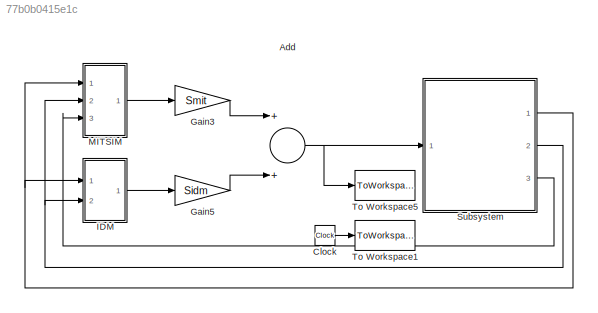
MODEL slx_77b0b0415e1c
KIND model
CONFIG AbsTol = auto
CONFIG EnableMultiTasking = on
CONFIG FixedStep = auto
CONFIG MaxStep = maxstepsize
CONFIG MinStep = auto
CONFIG RelTol = 1e-3
CONFIG SampleTimeConstraint = Unconstrained
CONFIG Solver = VariableStepAuto
CONFIG SolverName = VariableStepAuto
CONFIG StartTime = 0.0
CONFIG StopTime = tfinal
BLOCK [Sum] Add
  InputSameDT = off
  OutDataTypeStr = Inherit: Inherit via internal rule
  Ports = [2, 1]
  SaturateOnIntegerOverflow = off
BLOCK [Clock] Clock
BLOCK [Gain] Gain3
  Gain = Smit
  Multiplication = Matrix(K*u)
  OutDataTypeStr = Inherit: Inherit via internal rule
  ParamDataTypeStr = Inherit: Inherit via internal rule
  SaturateOnIntegerOverflow = off
BLOCK [Gain] Gain5
  Gain = Sidm
  Multiplication = Matrix(K*u)
  OutDataTypeStr = Inherit: Inherit via internal rule
  ParamDataTypeStr = Inherit: Inherit via internal rule
  SaturateOnIntegerOverflow = off
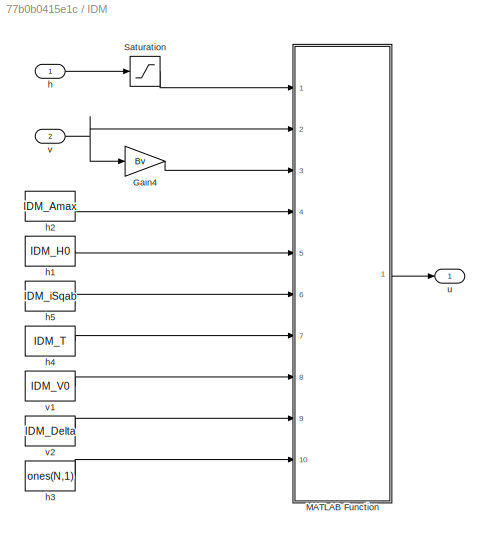
BLOCK [SubSystem] IDM
  Ports = [2, 1]
  RequestExecContextInheritance = off
BLOCK [Gain] IDM/Gain4
  Gain = Bv
  Multiplication = Matrix(K*u)
  OutDataTypeStr = Inherit: Inherit via internal rule
  ParamDataTypeStr = Inherit: Inherit via internal rule
  SaturateOnIntegerOverflow = off
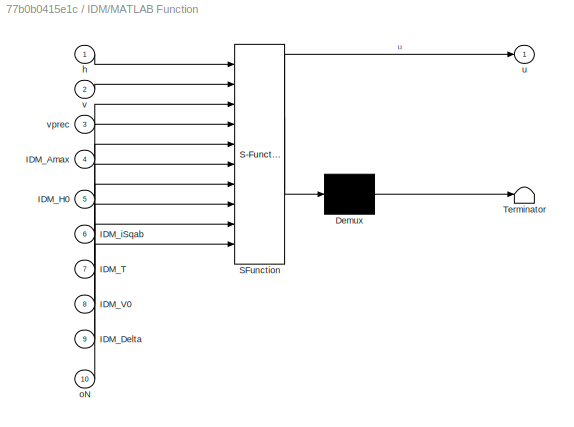
BLOCK [SubSystem] IDM/MATLAB Function
  ErrorFcn = Stateflow.Translate.translate
  PermitHierarchicalResolution = ExplicitOnly
  Ports = [10, 1]
  RequestExecContextInheritance = off
  SFBlockType = MATLAB Function
  TreatAsAtomicUnit = on
BLOCK [Demux] IDM/MATLAB Function/ Demux 
  Outputs = 1
  Ports = [1, 1]
BLOCK [S-Function] IDM/MATLAB Function/ SFunction 
  EnableBusSupport = on
  FunctionName = sf_sfun
  PortCounts = [10 2]
  Ports = [10, 2]
  SFcnIsStateOwnerBlock = off
  SFunctionDeploymentMode = off
  Tag = Stateflow S-Function A_Justo_SCHFV_I_V 2
BLOCK [Terminator] IDM/MATLAB Function/ Terminator 
BLOCK [Inport] IDM/MATLAB Function/IDM_Amax
  IconDisplay = Port number
  Port = 4
BLOCK [Inport] IDM/MATLAB Function/IDM_Delta
  IconDisplay = Port number
  Port = 9
BLOCK [Inport] IDM/MATLAB Function/IDM_H0
  IconDisplay = Port number
  Port = 5
BLOCK [Inport] IDM/MATLAB Function/IDM_T
  IconDisplay = Port number
  Port = 7
BLOCK [Inport] IDM/MATLAB Function/IDM_V0
  IconDisplay = Port number
  Port = 8
BLOCK [Inport] IDM/MATLAB Function/IDM_iSqab
  IconDisplay = Port number
  Port = 6
BLOCK [Inport] IDM/MATLAB Function/h
  IconDisplay = Port number
BLOCK [Inport] IDM/MATLAB Function/oN
  IconDisplay = Port number
  Port = 10
BLOCK [Outport] IDM/MATLAB Function/u
  IconDisplay = Port number
BLOCK [Inport] IDM/MATLAB Function/v
  IconDisplay = Port number
  Port = 2
BLOCK [Inport] IDM/MATLAB Function/vprec
  IconDisplay = Port number
  Port = 3
BLOCK [Saturate] IDM/Saturation
  InputPortMap = u0
  LowerLimit = 0.1
  Ports = [1, 1]
  UpperLimit = inf
BLOCK [Inport] IDM/h
  IconDisplay = Port number
BLOCK [Constant] IDM/h1
  Value = IDM_H0
BLOCK [Constant] IDM/h2
  Value = IDM_Amax
BLOCK [Constant] IDM/h3
  Value = ones(N,1)
BLOCK [Constant] IDM/h4
  Value = IDM_T
BLOCK [Constant] IDM/h5
  Value = IDM_iSqab
BLOCK [Outport] IDM/u
  IconDisplay = Port number
BLOCK [Inport] IDM/v
  IconDisplay = Port number
  Port = 2
BLOCK [Constant] IDM/v1
  Value = IDM_V0
BLOCK [Constant] IDM/v2
  Value = IDM_Delta
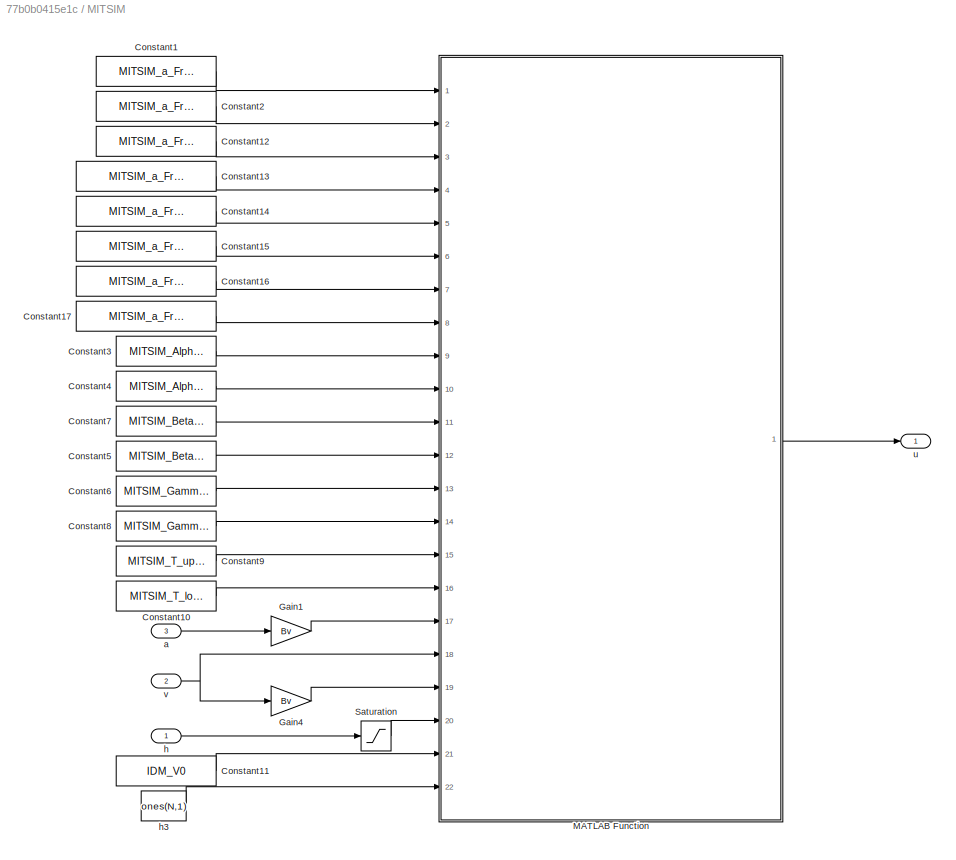
BLOCK [SubSystem] MITSIM
  Ports = [3, 1]
  RequestExecContextInheritance = off
BLOCK [Constant] MITSIM/Constant1
  Value = MITSIM_a_Free_thr_low
BLOCK [Constant] MITSIM/Constant10
  Value = MITSIM_T_lower
BLOCK [Constant] MITSIM/Constant11
  Value = IDM_V0
BLOCK [Constant] MITSIM/Constant12
  Value = MITSIM_a_Free_thr_high
BLOCK [Constant] MITSIM/Constant13
  Value = MITSIM_a_Free_bra_low
BLOCK [Constant] MITSIM/Constant14
  Value = MITSIM_a_Free_bra_midlow
BLOCK [Constant] MITSIM/Constant15
  Value = MITSIM_a_Free_bra_mid
BLOCK [Constant] MITSIM/Constant16
  Value = MITSIM_a_Free_bra_midhigh
BLOCK [Constant] MITSIM/Constant17
  Value = MITSIM_a_Free_bra_high
BLOCK [Constant] MITSIM/Constant2
  Value = MITSIM_a_Free_thr_mid
BLOCK [Constant] MITSIM/Constant3
  Value = MITSIM_Alpha_thr
BLOCK [Constant] MITSIM/Constant4
  Value = MITSIM_Alpha_bra
BLOCK [Constant] MITSIM/Constant5
  Value = MITSIM_Beta_bra
BLOCK [Constant] MITSIM/Constant6
  Value = MITSIM_Gamma_thr
BLOCK [Constant] MITSIM/Constant7
  Value = MITSIM_Beta_thr
BLOCK [Constant] MITSIM/Constant8
  Value = MITSIM_Gamma_bra
BLOCK [Constant] MITSIM/Constant9
  Value = MITSIM_T_upper
BLOCK [Gain] MITSIM/Gain1
  Gain = Bv
  Multiplication = Matrix(K*u)
  OutDataTypeStr = Inherit: Inherit via internal rule
  ParamDataTypeStr = Inherit: Inherit via internal rule
  SaturateOnIntegerOverflow = off
BLOCK [Gain] MITSIM/Gain4
  Gain = Bv
  Multiplication = Matrix(K*u)
  OutDataTypeStr = Inherit: Inherit via internal rule
  ParamDataTypeStr = Inherit: Inherit via internal rule
  SaturateOnIntegerOverflow = off
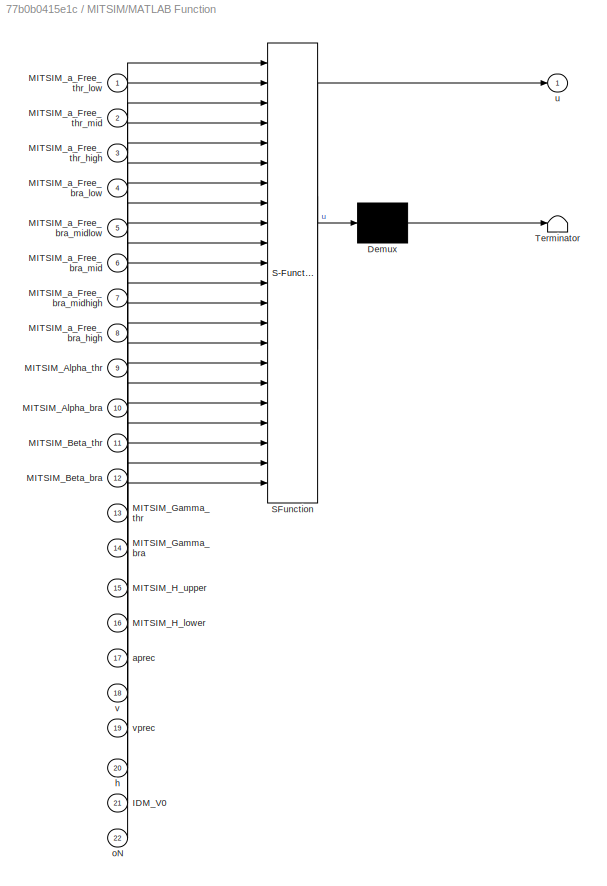
BLOCK [SubSystem] MITSIM/MATLAB Function
  ErrorFcn = Stateflow.Translate.translate
  PermitHierarchicalResolution = ExplicitOnly
  Ports = [22, 1]
  RequestExecContextInheritance = off
  SFBlockType = MATLAB Function
  TreatAsAtomicUnit = on
BLOCK [Demux] MITSIM/MATLAB Function/ Demux 
  Outputs = 1
  Ports = [1, 1]
BLOCK [S-Function] MITSIM/MATLAB Function/ SFunction 
  EnableBusSupport = on
  FunctionName = sf_sfun
  PortCounts = [22 2]
  Ports = [22, 2]
  SFcnIsStateOwnerBlock = off
  SFunctionDeploymentMode = off
  Tag = Stateflow S-Function A_Justo_SCHFV_I_V 5
BLOCK [Terminator] MITSIM/MATLAB Function/ Terminator 
BLOCK [Inport] MITSIM/MATLAB Function/IDM_V0
  IconDisplay = Port number
  Port = 21
BLOCK [Inport] MITSIM/MATLAB Function/MITSIM_Alpha_bra
  IconDisplay = Port number
  Port = 10
BLOCK [Inport] MITSIM/MATLAB Function/MITSIM_Alpha_thr
  IconDisplay = Port number
  Port = 9
BLOCK [Inport] MITSIM/MATLAB Function/MITSIM_Beta_bra
  IconDisplay = Port number
  Port = 12
BLOCK [Inport] MITSIM/MATLAB Function/MITSIM_Beta_thr
  IconDisplay = Port number
  Port = 11
BLOCK [Inport] MITSIM/MATLAB Function/MITSIM_Gamma_bra
  IconDisplay = Port number
  Port = 14
BLOCK [Inport] MITSIM/MATLAB Function/MITSIM_Gamma_thr
  IconDisplay = Port number
  Port = 13
BLOCK [Inport] MITSIM/MATLAB Function/MITSIM_H_lower
  IconDisplay = Port number
  Port = 16
BLOCK [Inport] MITSIM/MATLAB Function/MITSIM_H_upper
  IconDisplay = Port number
  Port = 15
BLOCK [Inport] MITSIM/MATLAB Function/MITSIM_a_Free_bra_high
  IconDisplay = Port number
  Port = 8
BLOCK [Inport] MITSIM/MATLAB Function/MITSIM_a_Free_bra_low
  IconDisplay = Port number
  Port = 4
BLOCK [Inport] MITSIM/MATLAB Function/MITSIM_a_Free_bra_mid
  IconDisplay = Port number
  Port = 6
BLOCK [Inport] MITSIM/MATLAB Function/MITSIM_a_Free_bra_midhigh
  IconDisplay = Port number
  Port = 7
BLOCK [Inport] MITSIM/MATLAB Function/MITSIM_a_Free_bra_midlow
  IconDisplay = Port number
  Port = 5
BLOCK [Inport] MITSIM/MATLAB Function/MITSIM_a_Free_thr_high
  IconDisplay = Port number
  Port = 3
BLOCK [Inport] MITSIM/MATLAB Function/MITSIM_a_Free_thr_low
  IconDisplay = Port number
BLOCK [Inport] MITSIM/MATLAB Function/MITSIM_a_Free_thr_mid
  IconDisplay = Port number
  Port = 2
BLOCK [Inport] MITSIM/MATLAB Function/aprec
  IconDisplay = Port number
  Port = 17
BLOCK [Inport] MITSIM/MATLAB Function/h
  IconDisplay = Port number
  Port = 20
BLOCK [Inport] MITSIM/MATLAB Function/oN
  IconDisplay = Port number
  Port = 22
BLOCK [Outport] MITSIM/MATLAB Function/u
  IconDisplay = Port number
BLOCK [Inport] MITSIM/MATLAB Function/v
  IconDisplay = Port number
  Port = 18
BLOCK [Inport] MITSIM/MATLAB Function/vprec
  IconDisplay = Port number
  Port = 19
BLOCK [Saturate] MITSIM/Saturation
  InputPortMap = u0
  LowerLimit = 0.1
  Ports = [1, 1]
  UpperLimit = inf
BLOCK [Inport] MITSIM/a
  IconDisplay = Port number
  Port = 3
BLOCK [Inport] MITSIM/h
  IconDisplay = Port number
BLOCK [Constant] MITSIM/h3
  Value = ones(N,1)
BLOCK [Outport] MITSIM/u
  IconDisplay = Port number
BLOCK [Inport] MITSIM/v
  IconDisplay = Port number
  Port = 2
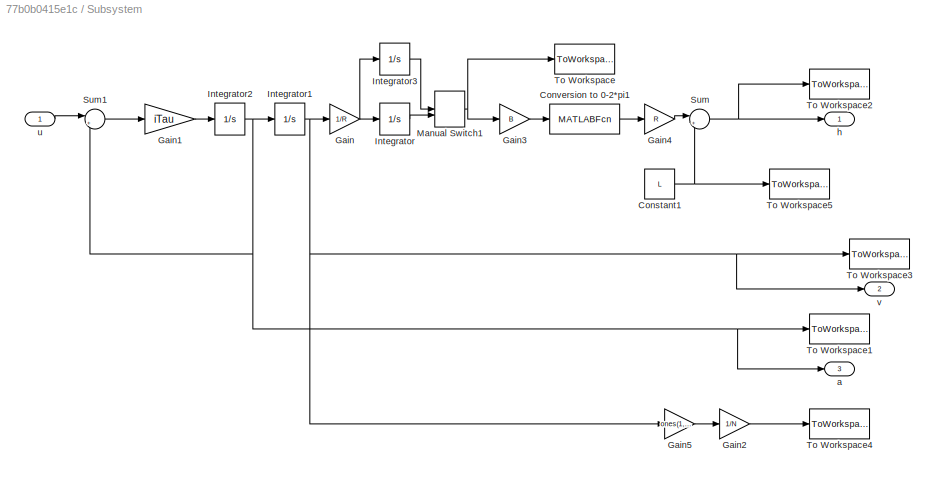
BLOCK [SubSystem] Subsystem
  Ports = [1, 3]
  RequestExecContextInheritance = off
BLOCK [Constant] Subsystem/Constant1
  Value = L
BLOCK [MATLABFcn] Subsystem/Conversion to 0-2*pi1
  MATLABFcn = wrapTo2Pi(u)
  Ports = [1, 1]
BLOCK [Gain] Subsystem/Gain
  Gain = 1/R
  OutDataTypeStr = Inherit: Inherit via internal rule
  ParamDataTypeStr = Inherit: Inherit via internal rule
  SaturateOnIntegerOverflow = off
BLOCK [Gain] Subsystem/Gain1
  Gain = iTau
  Multiplication = Matrix(K*u)
  OutDataTypeStr = Inherit: Inherit via internal rule
  ParamDataTypeStr = Inherit: Inherit via internal rule
  SaturateOnIntegerOverflow = off
BLOCK [Gain] Subsystem/Gain2
  Gain = 1/N
  OutDataTypeStr = Inherit: Inherit via internal rule
  ParamDataTypeStr = Inherit: Inherit via internal rule
  SaturateOnIntegerOverflow = off
BLOCK [Gain] Subsystem/Gain3
  Gain = B
  Multiplication = Matrix(K*u)
  OutDataTypeStr = Inherit: Inherit via internal rule
  ParamDataTypeStr = Inherit: Inherit via internal rule
  SaturateOnIntegerOverflow = off
BLOCK [Gain] Subsystem/Gain4
  Gain = R
  OutDataTypeStr = Inherit: Inherit via internal rule
  ParamDataTypeStr = Inherit: Inherit via internal rule
  SaturateOnIntegerOverflow = off
BLOCK [Gain] Subsystem/Gain5
  Gain = ones(1,N)
  Multiplication = Matrix(K*u)
  OutDataTypeStr = Inherit: Inherit via internal rule
  ParamDataTypeStr = Inherit: Inherit via internal rule
  SaturateOnIntegerOverflow = off
BLOCK [Integrator] Subsystem/Integrator
  InitialCondition = thini
  Ports = [1, 1]
  WrapState = on
  WrappedStateLowerValue = 0
  WrappedStateUpperValue = 2*pi
BLOCK [Integrator] Subsystem/Integrator1
  InitialCondition = vini
  LimitOutput = on
  LowerSaturationLimit = 0
  Ports = [1, 1]
  WrappedStateLowerValue = 0
  WrappedStateUpperValue = 2*pi
BLOCK [Integrator] Subsystem/Integrator2
  InitialCondition = aini
  Ports = [1, 1]
  WrappedStateLowerValue = 0
  WrappedStateUpperValue = 2*pi
BLOCK [Integrator] Subsystem/Integrator3
  InitialCondition = thini
  Ports = [1, 1]
  WrappedStateLowerValue = 0
  WrappedStateUpperValue = 2*pi
BLOCK [ManualSwitch] Subsystem/Manual Switch1
  CurrentSetting = 0
BLOCK [Sum] Subsystem/Sum
  IconShape = round
  InputSameDT = off
  Inputs = |+-
  OutDataTypeStr = Inherit: Inherit via internal rule
  Ports = [2, 1]
  SaturateOnIntegerOverflow = off
BLOCK [Sum] Subsystem/Sum1
  IconShape = round
  InputSameDT = off
  Inputs = |+-
  OutDataTypeStr = Inherit: Inherit via internal rule
  Ports = [2, 1]
  SaturateOnIntegerOverflow = off
BLOCK [ToWorkspace] Subsystem/To Workspace
  FixptAsFi = on
  MaxDataPoints = inf
  Ports = [1]
  SampleTime = -1
  VariableName = sims_th
BLOCK [ToWorkspace] Subsystem/To Workspace1
  FixptAsFi = on
  MaxDataPoints = inf
  Ports = [1]
  SampleTime = -1
  VariableName = sims_a
BLOCK [ToWorkspace] Subsystem/To Workspace2
  FixptAsFi = on
  MaxDataPoints = inf
  Ports = [1]
  SampleTime = -1
  VariableName = sims_h
BLOCK [ToWorkspace] Subsystem/To Workspace3
  FixptAsFi = on
  MaxDataPoints = inf
  Ports = [1]
  SampleTime = -1
  VariableName = sims_v
BLOCK [ToWorkspace] Subsystem/To Workspace4
  FixptAsFi = on
  MaxDataPoints = inf
  Ports = [1]
  SampleTime = -1
  VariableName = sims_vav
BLOCK [ToWorkspace] Subsystem/To Workspace5
  FixptAsFi = on
  MaxDataPoints = inf
  Ports = [1]
  SampleTime = -1
  VariableName = sims_L
BLOCK [Outport] Subsystem/a
  IconDisplay = Port number
  Port = 3
BLOCK [Outport] Subsystem/h
  IconDisplay = Port number
BLOCK [Inport] Subsystem/u
  IconDisplay = Port number
BLOCK [Outport] Subsystem/v
  IconDisplay = Port number
  Port = 2
BLOCK [ToWorkspace] To Workspace1
  FixptAsFi = on
  MaxDataPoints = inf
  Ports = [1]
  SampleTime = -1
  VariableName = time
BLOCK [ToWorkspace] To Workspace5
  FixptAsFi = on
  MaxDataPoints = inf
  Ports = [1]
  SampleTime = -1
  VariableName = sims_u
NET Add:1 -> Subsystem:1, To Workspace5:1
LINE Clock:1 -> To Workspace1:1
LINE Gain3:1 -> Add:1
LINE Gain5:1 -> Add:2
LINE IDM/Gain4:1 -> IDM/MATLAB Function:3
LINE IDM/MATLAB Function:1 -> IDM/u:1
LINE IDM/Saturation:1 -> IDM/MATLAB Function:1
LINE IDM/h1:1 -> IDM/MATLAB Function:5
LINE IDM/h2:1 -> IDM/MATLAB Function:4
LINE IDM/h3:1 -> IDM/MATLAB Function:10
LINE IDM/h4:1 -> IDM/MATLAB Function:7
LINE IDM/h5:1 -> IDM/MATLAB Function:6
LINE IDM/h:1 -> IDM/Saturation:1
LINE IDM/v1:1 -> IDM/MATLAB Function:8
LINE IDM/v2:1 -> IDM/MATLAB Function:9
NET IDM/v:1 -> IDM/Gain4:1, IDM/MATLAB Function:2
LINE IDM:1 -> Gain5:1
LINE MITSIM/Constant10:1 -> MITSIM/MATLAB Function:16
LINE MITSIM/Constant11:1 -> MITSIM/MATLAB Function:21
LINE MITSIM/Constant12:1 -> MITSIM/MATLAB Function:3
LINE MITSIM/Constant13:1 -> MITSIM/MATLAB Function:4
LINE MITSIM/Constant14:1 -> MITSIM/MATLAB Function:5
LINE MITSIM/Constant15:1 -> MITSIM/MATLAB Function:6
LINE MITSIM/Constant16:1 -> MITSIM/MATLAB Function:7
LINE MITSIM/Constant17:1 -> MITSIM/MATLAB Function:8
LINE MITSIM/Constant1:1 -> MITSIM/MATLAB Function:1
LINE MITSIM/Constant2:1 -> MITSIM/MATLAB Function:2
LINE MITSIM/Constant3:1 -> MITSIM/MATLAB Function:9
LINE MITSIM/Constant4:1 -> MITSIM/MATLAB Function:10
LINE MITSIM/Constant5:1 -> MITSIM/MATLAB Function:12
LINE MITSIM/Constant6:1 -> MITSIM/MATLAB Function:13
LINE MITSIM/Constant7:1 -> MITSIM/MATLAB Function:11
LINE MITSIM/Constant8:1 -> MITSIM/MATLAB Function:14
LINE MITSIM/Constant9:1 -> MITSIM/MATLAB Function:15
LINE MITSIM/Gain1:1 -> MITSIM/MATLAB Function:17
LINE MITSIM/Gain4:1 -> MITSIM/MATLAB Function:19
LINE MITSIM/MATLAB Function:1 -> MITSIM/u:1
LINE MITSIM/Saturation:1 -> MITSIM/MATLAB Function:20
LINE MITSIM/a:1 -> MITSIM/Gain1:1
LINE MITSIM/h3:1 -> MITSIM/MATLAB Function:22
LINE MITSIM/h:1 -> MITSIM/Saturation:1
NET MITSIM/v:1 -> MITSIM/Gain4:1, MITSIM/MATLAB Function:18
LINE MITSIM:1 -> Gain3:1
NET Subsystem/Constant1:1 -> Subsystem/Sum:2, Subsystem/To Workspace5:1
LINE Subsystem/Conversion to 0-2*pi1:1 -> Subsystem/Gain4:1
LINE Subsystem/Gain1:1 -> Subsystem/Integrator2:1
LINE Subsystem/Gain2:1 -> Subsystem/To Workspace4:1
LINE Subsystem/Gain3:1 -> Subsystem/Conversion to 0-2*pi1:1
LINE Subsystem/Gain4:1 -> Subsystem/Sum:1
LINE Subsystem/Gain5:1 -> Subsystem/Gain2:1
NET Subsystem/Gain:1 -> Subsystem/Integrator3:1, Subsystem/Integrator:1
NET Subsystem/Integrator1:1 -> Subsystem/Gain5:1, Subsystem/Gain:1, Subsystem/To Workspace3:1, Subsystem/v:1
NET Subsystem/Integrator2:1 -> Subsystem/Integrator1:1, Subsystem/Sum1:2, Subsystem/To Workspace1:1, Subsystem/a:1
LINE Subsystem/Integrator3:1 -> Subsystem/Manual Switch1:1
LINE Subsystem/Integrator:1 -> Subsystem/Manual Switch1:2
NET Subsystem/Manual Switch1:1 -> Subsystem/Gain3:1, Subsystem/To Workspace:1
LINE Subsystem/Sum1:1 -> Subsystem/Gain1:1
NET Subsystem/Sum:1 -> Subsystem/To Workspace2:1, Subsystem/h:1
LINE Subsystem/u:1 -> Subsystem/Sum1:1
NET Subsystem:1 -> IDM:1, MITSIM:1
NET Subsystem:2 -> IDM:2, MITSIM:2
LINE Subsystem:3 -> MITSIM:3
note: NET lines group one-source signal fan-out (src -> all destinations, sorted); 1:1 wires keep LINE
CHART IDM/MATLAB Function states=1 transitions=1
  STATE_LABEL 'eML_blk_kernel()'
  STATE_LABEL 'SCRIPT:\nfunction u = fcn(h,v,vprec,IDM_Amax,IDM_H0,IDM_iSqab,IDM_T,IDM_V0,IDM_Delta,oN)\n\n% IDM\nhr = IDM_H0+max(oN*0,IDM_T*v+v.*(v-vprec).*IDM_iSqab);\n% Condition for avoiding numerical errors\nv = v.*(v>0);\n% Control\nu = IDM_Amax*(oN-(v./IDM_V0).^IDM_Delta-(hr./h).^2);'
CHART MITSIM/MATLAB Function states=1 transitions=1
  STATE_LABEL 'eML_blk_kernel()'
  STATE_LABEL 'SCRIPT:\nfunction u = fcn(MITSIM_a_Free_thr_low, MITSIM_a_Free_thr_mid, ...\n    MITSIM_a_Free_thr_high, MITSIM_a_Free_bra_low, ...\n    MITSIM_a_Free_bra_midlow, MITSIM_a_Free_bra_mid, ...\n    MITSIM_a_Free_bra_midhigh, MITSIM_a_Free_bra_high, MITSIM_Alpha_thr...\n    , MITSIM_Alpha_bra, MITSIM_Beta_thr, MITSIM_Beta_bra, ...\nMITSIM_Gamma_thr, MITSIM_Gamma_bra, MITSIM_H_upper, MITSIM_H_lower, ...\napre...<+3608ch>'
